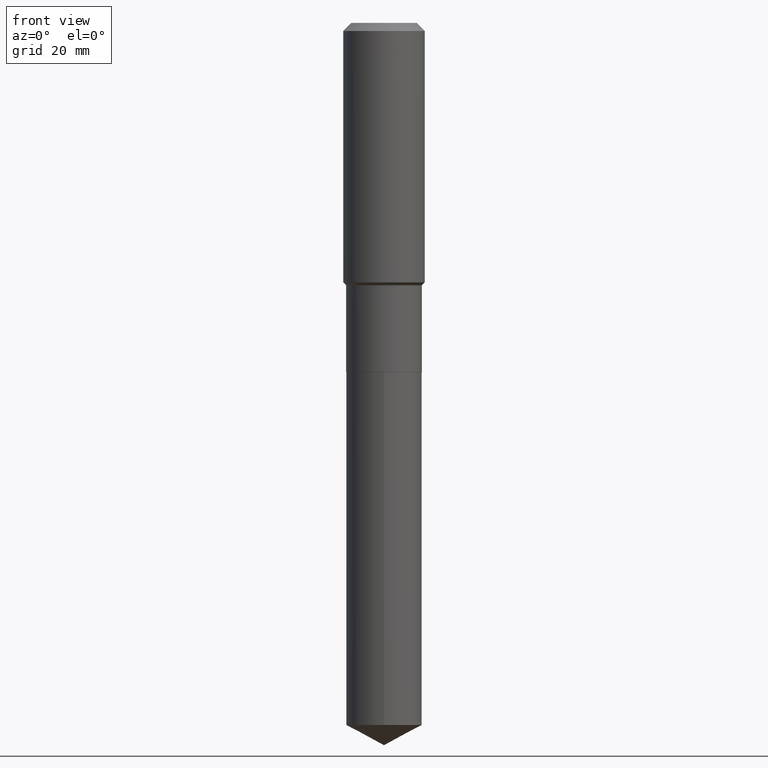
[diagram: clean part render]
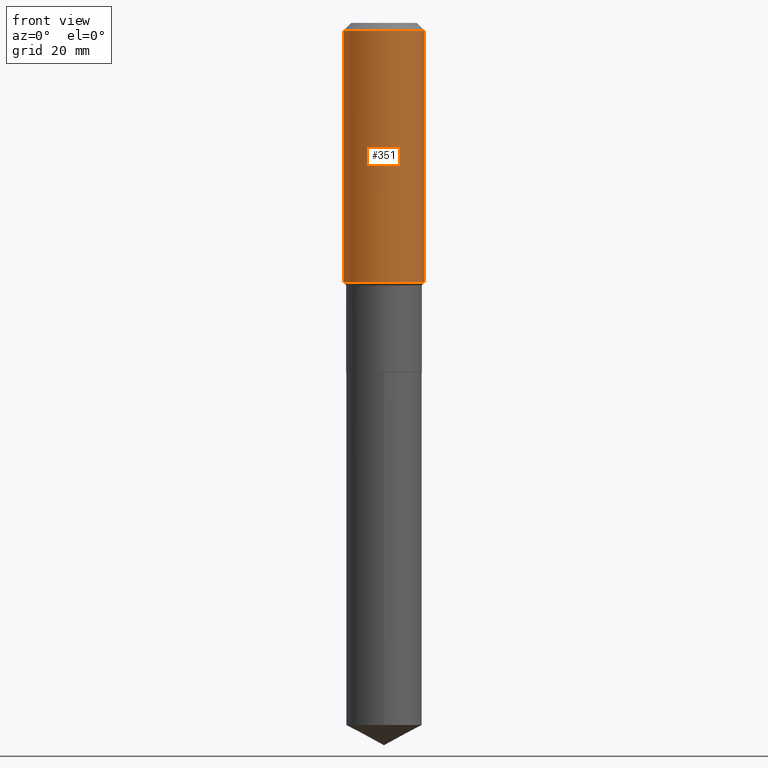
[diagram: same view with one face highlighted and labeled with its STEP entity id]
A machine part, front view. The second image highlights one B-rep face of the part: STEP entity #351.
In plain terms, the highlighted cylindrical surface (partial cylindrical patch) has radius 7.0002 mm, axis along (-0, 0, 1).
Its self-contained STEP definition (entity closure, byte-faithful):
#1 = LINE ( 'NONE', #387, #12 ) ;
#12 = VECTOR ( 'NONE', #79, 39.37007874015748143 ) ;
#18 = DIRECTION ( 'NONE',  ( 1.000000000000000000, -6.982962677686267499E-15, 4.876176775795935793E-29 ) ) ;
#19 = VERTEX_POINT ( 'NONE', #70 ) ;
#20 = DIRECTION ( 'NONE',  ( 1.000000000000000000, -6.982962677686265922E-15, 0.000000000000000000 ) ) ;
#56 = CARTESIAN_POINT ( 'NONE',  ( 0.000000000000000000, 0.000000000000000000, 0.000000000000000000 ) ) ;
#70 = CARTESIAN_POINT ( 'NONE',  ( -0.2756000000000002337, -4.165453340442153443E-15, -1.753899999999999570 ) ) ;
#76 = ORIENTED_EDGE ( 'NONE', *, *, #445, .F. ) ;
#79 = DIRECTION ( 'NONE',  ( -2.445468806185136877E-29, 3.491481338843145188E-15, 1.000000000000000000 ) ) ;
#95 = VERTEX_POINT ( 'NONE', #479 ) ;
#127 = ORIENTED_EDGE ( 'NONE', *, *, #268, .T. ) ;
#138 = EDGE_LOOP ( 'NONE', ( #281, #236, #127, #76 ) ) ;
#157 = CARTESIAN_POINT ( 'NONE',  ( 0.2756000000000000116, -2.116954965367370658E-15, -0.05512000000000035621 ) ) ;
#160 = DIRECTION ( 'NONE',  ( -2.445468806185136877E-29, 3.491481338843145188E-15, 1.000000000000000000 ) ) ;
#197 = DIRECTION ( 'NONE',  ( -2.445468806185136597E-29, 3.491481338843145583E-15, 1.000000000000000000 ) ) ;
#234 = DIRECTION ( 'NONE',  ( -2.445468806185136597E-29, 3.491481338843145583E-15, 1.000000000000000000 ) ) ;
#236 = ORIENTED_EDGE ( 'NONE', *, *, #422, .T. ) ;
#242 = VERTEX_POINT ( 'NONE', #459 ) ;
#243 = LINE ( 'NONE', #470, #416 ) ;
#262 = AXIS2_PLACEMENT_3D ( 'NONE', #314, #310, #20 ) ;
#268 = EDGE_CURVE ( 'NONE', #95, #324, #1, .T. ) ;
#276 = FACE_OUTER_BOUND ( 'NONE', #138, .T. ) ;
#281 = ORIENTED_EDGE ( 'NONE', *, *, #348, .F. ) ;
#310 = DIRECTION ( 'NONE',  ( -2.445468806185136597E-29, 3.491481338843145583E-15, 1.000000000000000000 ) ) ;
#314 = CARTESIAN_POINT ( 'NONE',  ( 1.347942405969256063E-30, -1.924504513970354330E-16, -0.05512000000000035621 ) ) ;
#319 = DIRECTION ( 'NONE',  ( 1.000000000000000000, -6.982962677686267499E-15, 0.000000000000000000 ) ) ;
#324 = VERTEX_POINT ( 'NONE', #157 ) ;
#348 = EDGE_CURVE ( 'NONE', #19, #242, #243, .T. ) ;
#351 = ADVANCED_FACE ( 'NONE', ( #276 ), #395, .T. ) ;
#354 = CIRCLE ( 'NONE', #262, 0.2756000000000000116 ) ;
#359 = CARTESIAN_POINT ( 'NONE',  ( 4.289107739168109869E-29, -6.123709120196991610E-15, -1.753899999999999570 ) ) ;
#387 = CARTESIAN_POINT ( 'NONE',  ( 0.2756000000000001227, -1.924504513970336137E-15, 1.343874319409360548E-29 ) ) ;
#395 = CYLINDRICAL_SURFACE ( 'NONE', #461, 0.2756000000000001227 ) ;
#416 = VECTOR ( 'NONE', #160, 39.37007874015748143 ) ;
#422 = EDGE_CURVE ( 'NONE', #19, #95, #449, .T. ) ;
#423 = AXIS2_PLACEMENT_3D ( 'NONE', #359, #197, #319 ) ;
#445 = EDGE_CURVE ( 'NONE', #242, #324, #354, .T. ) ;
#449 = CIRCLE ( 'NONE', #423, 0.2756000000000002337 ) ;
#459 = CARTESIAN_POINT ( 'NONE',  ( -0.2756000000000000116, -1.199824006042176279E-15, -0.05512000000000035621 ) ) ;
#461 = AXIS2_PLACEMENT_3D ( 'NONE', #56, #234, #18 ) ;
#470 = CARTESIAN_POINT ( 'NONE',  ( -0.2756000000000001227, 1.958255779754836984E-15, -1.355658510874252567E-29 ) ) ;
#479 = CARTESIAN_POINT ( 'NONE',  ( 0.2756000000000002337, -8.048213634167328931E-15, -1.753899999999999570 ) ) ;